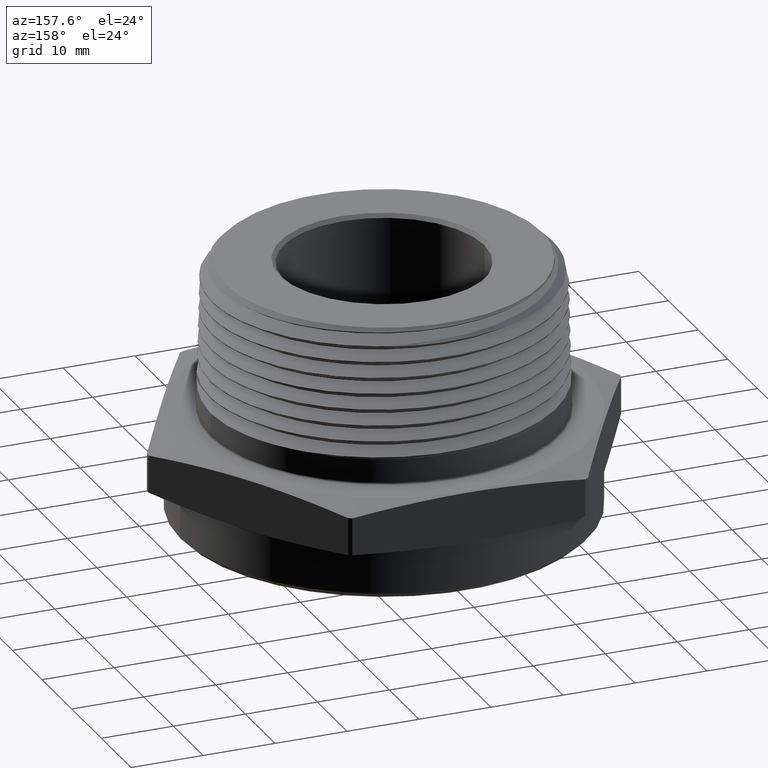
[diagram: clean part render]
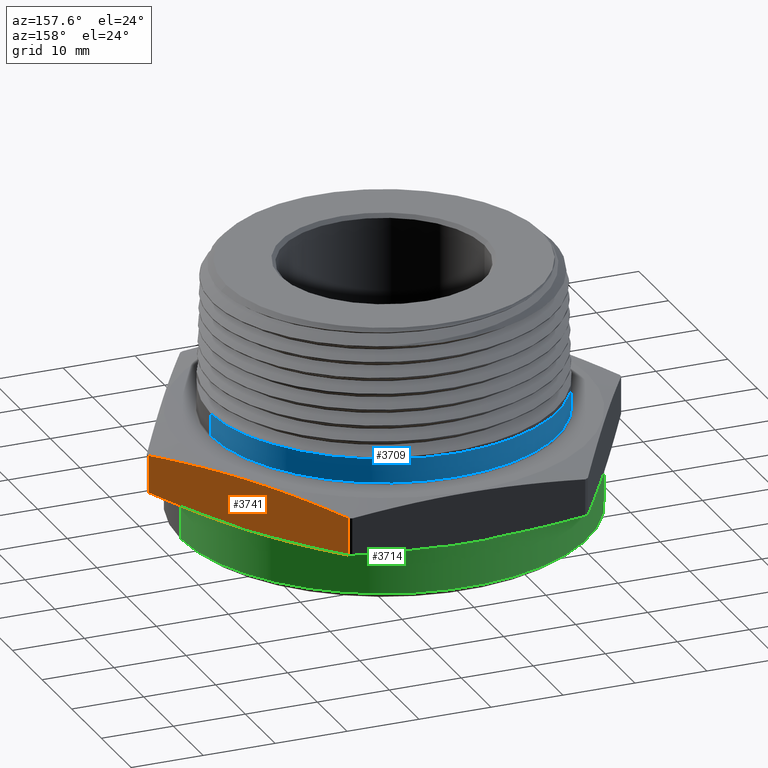
[diagram: same view with three faces highlighted in distinct colors, each labeled with its STEP entity id]
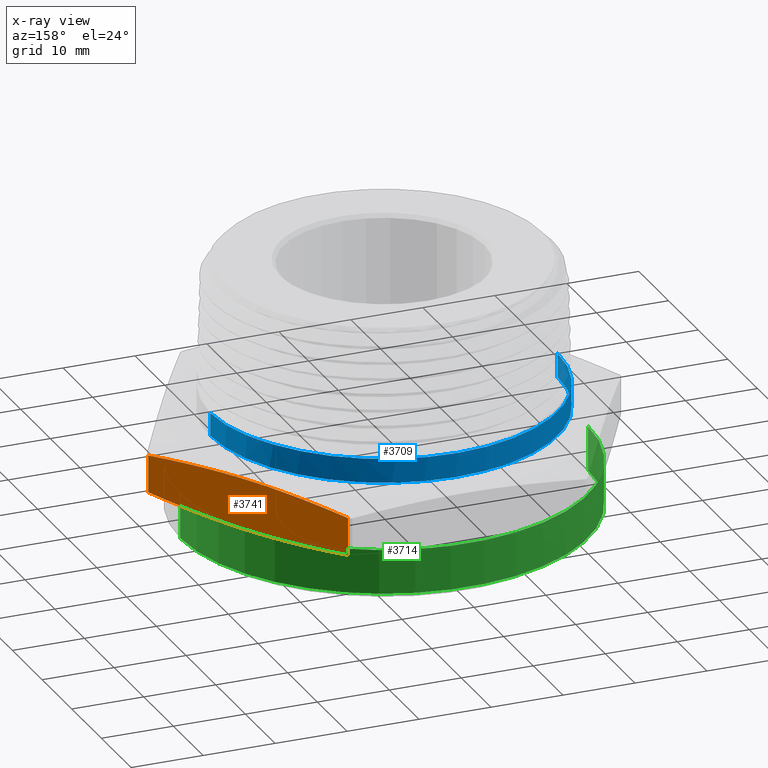
[diagram: x-ray of the same camera — body ghosted, the three highlighted faces saturated]
A machine part, auxiliary view with three faces highlighted in distinct colors.
The next image is the same camera in x-ray (body ghosted, the three faces saturated) — at least one of them is partly hidden behind the body in this view.
Their STEP definitions:

[orange] entity #3741 — the highlighted planar face has unit normal (-0.866, -0.5, 0).
#94 = CARTESIAN_POINT ( 'NONE',  ( 1.292995751187356900, 0.01046566497281173000, 0.2421568324111264000 ) ) ;
#1514 = CARTESIAN_POINT ( 'NONE',  ( 0.6555614073276295800, 1.114534335027189000, 0.03784316758887303800 ) ) ;
#1516 = CARTESIAN_POINT ( 'NONE',  ( 0.6555614073276295800, 1.114534335027189000, 0.2421568324111265100 ) ) ;
#1884 = PLANE ( 'NONE',  #4661 ) ;
#1885 = CARTESIAN_POINT ( 'NONE',  ( 1.299038105676657600, 8.878505979408856000E-016, 0.2800000000000000300 ) ) ;
#1890 = DIRECTION ( 'NONE',  ( -0.8660254037844384900, -0.5000000000000004400, 0.0000000000000000000 ) ) ;
#1891 = DIRECTION ( 'NONE',  ( 0.5000000000000003300, -0.8660254037844383700, 0.0000000000000000000 ) ) ;
#1928 = CARTESIAN_POINT ( 'NONE',  ( 0.6555614073276295800, 1.114534335027189000, 0.2421568324111265100 ) ) ;
#1935 = CARTESIAN_POINT ( 'NONE',  ( 0.7086809359826067300, 1.022528612522657400, 0.2532890800781960600 ) ) ;
#1941 = CARTESIAN_POINT ( 'NONE',  ( 0.7618004646375842200, 0.9305228900181260500, 0.2623080740063898900 ) ) ;
#1942 = CARTESIAN_POINT ( 'NONE',  ( 0.8680395219475384200, 0.7465114450090630800, 0.2746186185401573400 ) ) ;
#1943 = CARTESIAN_POINT ( 'NONE',  ( 0.9742785792574930600, 0.5625000000000003300, 0.2811302502264418400 ) ) ;
#1944 = CARTESIAN_POINT ( 'NONE',  ( 1.080517636567448000, 0.3784885549909375900, 0.2746186185401574000 ) ) ;
#1945 = CARTESIAN_POINT ( 'NONE',  ( 1.186756693877402300, 0.1944771099818747900, 0.2623080740063898400 ) ) ;
#1946 = CARTESIAN_POINT ( 'NONE',  ( 1.239876222532379400, 0.1024713874773433100, 0.2532890800781961200 ) ) ;
#1947 = CARTESIAN_POINT ( 'NONE',  ( 1.292995751187356900, 0.01046566497281173000, 0.2421568324111264000 ) ) ;
#2024 = CARTESIAN_POINT ( 'NONE',  ( 1.292995751187356900, 0.01046566497281173000, 0.03784316758887328000 ) ) ;
#2025 = CARTESIAN_POINT ( 'NONE',  ( 1.239876222532379400, 0.1024713874773432000, 0.02671091992180333500 ) ) ;
#2029 = CARTESIAN_POINT ( 'NONE',  ( 1.186756693877401900, 0.1944771099818745400, 0.01769192599360961200 ) ) ;
#2030 = CARTESIAN_POINT ( 'NONE',  ( 1.080517636567447400, 0.3784885549909373100, 0.005381381459842026600 ) ) ;
#2031 = CARTESIAN_POINT ( 'NONE',  ( 0.9742785792574930600, 0.5625000000000003300, -0.001130250226442484100 ) ) ;
#2032 = CARTESIAN_POINT ( 'NONE',  ( 0.8680395219475384200, 0.7465114450090629700, 0.005381381459842069100 ) ) ;
#2033 = CARTESIAN_POINT ( 'NONE',  ( 0.7618004646375840000, 0.9305228900181260500, 0.01769192599360968500 ) ) ;
#2034 = CARTESIAN_POINT ( 'NONE',  ( 0.7086809359826070600, 1.022528612522657800, 0.02671091992180342100 ) ) ;
#2035 = CARTESIAN_POINT ( 'NONE',  ( 0.6555614073276295800, 1.114534335027189000, 0.03784316758887303800 ) ) ;
#2785 = VERTEX_POINT ( 'NONE', #94 ) ;
#2818 = VERTEX_POINT ( 'NONE', #6125 ) ;
#2844 = VERTEX_POINT ( 'NONE', #1514 ) ;
#2846 = VERTEX_POINT ( 'NONE', #1516 ) ;
#2928 = ORIENTED_EDGE ( 'NONE', *, *, #5303, .T. ) ;
#2929 = ORIENTED_EDGE ( 'NONE', *, *, #5395, .T. ) ;
#2930 = ORIENTED_EDGE ( 'NONE', *, *, #4608, .T. ) ;
#2931 = ORIENTED_EDGE ( 'NONE', *, *, #5390, .T. ) ;
#3071 = EDGE_LOOP ( 'NONE', ( #2928, #2929, #2930, #2931 ) ) ;
#3233 = FACE_OUTER_BOUND ( 'NONE', #3071, .T. ) ;
#3348 = LINE ( 'NONE', #7470, #3351 ) ;
#3351 = VECTOR ( 'NONE', #7471, 39.37007874015748100 ) ;
#3741 = ADVANCED_FACE ( 'NONE', ( #3233 ), #1884, .F. ) ;
#4608 = EDGE_CURVE ( 'NONE', #2846, #2785, #6100, .T. ) ;
#4661 = AXIS2_PLACEMENT_3D ( 'NONE', #1885, #1890, #1891 ) ;
#5303 = EDGE_CURVE ( 'NONE', #2818, #2844, #6104, .T. ) ;
#5390 = EDGE_CURVE ( 'NONE', #2785, #2818, #3348, .T. ) ;
#5395 = EDGE_CURVE ( 'NONE', #2844, #2846, #7572, .T. ) ;
#6100 = B_SPLINE_CURVE_WITH_KNOTS ( 'NONE', 3,
 ( #1928, #1935, #1941, #1942, #1943, #1944, #1945, #1946, #1947 ),
 .UNSPECIFIED., .F., .F.,
 ( 4, 2, 1, 2, 4 ),
 ( 1.908587031458644900E-006, 0.008097324754049988600, 0.01619274092106852100, 0.02428815708808704900, 0.03238357325510558100 ),
 .UNSPECIFIED. ) ;
#6104 = B_SPLINE_CURVE_WITH_KNOTS ( 'NONE', 3,
 ( #2024, #2025, #2029, #2030, #2031, #2032, #2033, #2034, #2035 ),
 .UNSPECIFIED., .F., .F.,
 ( 4, 2, 1, 2, 4 ),
 ( 1.908587031637594600E-006, 0.008097324754050165600, 0.01619274092106869400, 0.02428815708808722300, 0.03238357325510576200 ),
 .UNSPECIFIED. ) ;
#6125 = CARTESIAN_POINT ( 'NONE',  ( 1.292995751187356900, 0.01046566497281173000, 0.03784316758887328000 ) ) ;
#7470 = CARTESIAN_POINT ( 'NONE',  ( 1.292995751187356900, 0.01046566497281173000, -3.999857633734060900E-017 ) ) ;
#7471 = DIRECTION ( 'NONE',  ( -1.254986547952384500E-016, -0.0000000000000000000, -1.000000000000000000 ) ) ;
#7482 = CARTESIAN_POINT ( 'NONE',  ( 0.6555614073276295800, 1.114534335027189000, 3.999857633734060900E-017 ) ) ;
#7483 = DIRECTION ( 'NONE',  ( 1.254986547952384500E-016, 0.0000000000000000000, 1.000000000000000000 ) ) ;
#7572 = LINE ( 'NONE', #7482, #7573 ) ;
#7573 = VECTOR ( 'NONE', #7483, 39.37007874015748100 ) ;

[blue] entity #3709 — the highlighted cylindrical surface (partial cylindrical patch) has radius 24.13 mm, axis along (-0, -0, -1).
#50 = ORIENTED_EDGE ( 'NONE', *, *, #5314, .F. ) ;
#52 = ORIENTED_EDGE ( 'NONE', *, *, #5312, .T. ) ;
#54 = ORIENTED_EDGE ( 'NONE', *, *, #5311, .F. ) ;
#55 = ORIENTED_EDGE ( 'NONE', *, *, #5315, .F. ) ;
#56 = ORIENTED_EDGE ( 'NONE', *, *, #5313, .T. ) ;
#1533 = CARTESIAN_POINT ( 'NONE',  ( -0.9499999999999999600, 0.0000000000000000000, 0.4222118300598746700 ) ) ;
#1548 = CARTESIAN_POINT ( 'NONE',  ( 0.9499999999999999600, 1.163414459189985400E-016, 0.2900000000000000400 ) ) ;
#1790 = DIRECTION ( 'NONE',  ( -1.000000000000000000, 0.0000000000000000000, 0.0000000000000000000 ) ) ;
#1791 = CARTESIAN_POINT ( 'NONE',  ( 0.0000000000000000000, 0.0000000000000000000, 1.110000000000000100 ) ) ;
#1792 = DIRECTION ( 'NONE',  ( -0.0000000000000000000, -0.0000000000000000000, -1.000000000000000000 ) ) ;
#2051 = CARTESIAN_POINT ( 'NONE',  ( 0.9499999999999995100, 0.04376044649130524800, 0.4153536803664295000 ) ) ;
#2052 = DIRECTION ( 'NONE',  ( -0.0000000000000000000, -0.0000000000000000000, -1.000000000000000000 ) ) ;
#2056 = CARTESIAN_POINT ( 'NONE',  ( 0.9499999999999999600, 1.817982100010567200E-015, 0.4147256000610702900 ) ) ;
#2057 = CARTESIAN_POINT ( 'NONE',  ( 0.9499999999999999600, 1.163414459189985400E-016, 1.110000000000000100 ) ) ;
#2058 = CARTESIAN_POINT ( 'NONE',  ( 0.9469906977882162100, 0.08726416962818121800, 0.4159752671624800100 ) ) ;
#2059 = CARTESIAN_POINT ( 'NONE',  ( 0.9379930416244273200, 0.1521369715543598700, 0.4169172804552018800 ) ) ;
#2060 = CARTESIAN_POINT ( 'NONE',  ( 0.9342316562771502100, 0.1737374126749093000, 0.4172328627869398800 ) ) ;
#2061 = CARTESIAN_POINT ( 'NONE',  ( 0.9252972745387201300, 0.2163294475667519600, 0.4178567693195672800 ) ) ;
#2062 = CARTESIAN_POINT ( 'NONE',  ( 0.9201196890647613800, 0.2373750278949111900, 0.4181665073908486500 ) ) ;
#2063 = CARTESIAN_POINT ( 'NONE',  ( 0.9024983694017203500, 0.2997753784389347600, 0.4190960269642967100 ) ) ;
#2064 = CARTESIAN_POINT ( 'NONE',  ( 0.8879755952853726200, 0.3403970977147762200, 0.4197173064405163600 ) ) ;
#2065 = CARTESIAN_POINT ( 'NONE',  ( 0.8620210226933806600, 0.3998593089118000500, 0.4206468554580040700 ) ) ;
#2066 = CARTESIAN_POINT ( 'NONE',  ( 0.8526720590470232600, 0.4194341386086329300, 0.4209569746215595700 ) ) ;
#2067 = CARTESIAN_POINT ( 'NONE',  ( 0.8325481777068743900, 0.4580809630478203700, 0.4215819216731226400 ) ) ;
#2068 = CARTESIAN_POINT ( 'NONE',  ( 0.8217607232639058100, 0.4771666976964960000, 0.4218970241964527500 ) ) ;
#2069 = CARTESIAN_POINT ( 'NONE',  ( 0.8103408575767079300, 0.4958303082122407200, 0.4222118300598746200 ) ) ;
#2070 = DIRECTION ( 'NONE',  ( -0.0000000000000000000, -0.0000000000000000000, -1.000000000000000000 ) ) ;
#2071 = CARTESIAN_POINT ( 'NONE',  ( -0.9499999999999999600, 0.0000000000000000000, 1.110000000000000100 ) ) ;
#2073 = CARTESIAN_POINT ( 'NONE',  ( 0.0000000000000000000, 0.0000000000000000000, 0.2900000000000000400 ) ) ;
#2074 = DIRECTION ( 'NONE',  ( -0.0000000000000000000, 0.0000000000000000000, 1.000000000000000000 ) ) ;
#2075 = DIRECTION ( 'NONE',  ( 1.000000000000000000, 0.0000000000000000000, 0.0000000000000000000 ) ) ;
#2079 = CARTESIAN_POINT ( 'NONE',  ( 0.0000000000000000000, 0.0000000000000000000, 0.4222118300598746700 ) ) ;
#2080 = DIRECTION ( 'NONE',  ( 0.0000000000000000000, 0.0000000000000000000, 1.000000000000000000 ) ) ;
#2081 = DIRECTION ( 'NONE',  ( -1.000000000000000000, 0.0000000000000000000, 0.0000000000000000000 ) ) ;
#2815 = VERTEX_POINT ( 'NONE', #6122 ) ;
#2831 = VERTEX_POINT ( 'NONE', #6138 ) ;
#2838 = VERTEX_POINT ( 'NONE', #6145 ) ;
#2863 = VERTEX_POINT ( 'NONE', #1533 ) ;
#2878 = VERTEX_POINT ( 'NONE', #1548 ) ;
#3068 = EDGE_LOOP ( 'NONE', ( #54, #52, #56, #50, #55 ) ) ;
#3167 = CYLINDRICAL_SURFACE ( 'NONE', #4633, 0.9499999999999999600 ) ;
#3175 = FACE_OUTER_BOUND ( 'NONE', #3068, .T. ) ;
#3286 = LINE ( 'NONE', #2057, #3289 ) ;
#3288 = CIRCLE ( 'NONE', #4691, 0.9499999999999999600 ) ;
#3289 = VECTOR ( 'NONE', #2070, 39.37007874015748100 ) ;
#3290 = LINE ( 'NONE', #2071, #3292 ) ;
#3291 = CIRCLE ( 'NONE', #4692, 0.9499999999999999600 ) ;
#3292 = VECTOR ( 'NONE', #2052, 39.37007874015748100 ) ;
#3709 = ADVANCED_FACE ( 'NONE', ( #3175 ), #3167, .T. ) ;
#4633 = AXIS2_PLACEMENT_3D ( 'NONE', #1791, #1792, #1790 ) ;
#4691 = AXIS2_PLACEMENT_3D ( 'NONE', #2073, #2074, #2075 ) ;
#4692 = AXIS2_PLACEMENT_3D ( 'NONE', #2079, #2080, #2081 ) ;
#5311 = EDGE_CURVE ( 'NONE', #2831, #2815, #6093, .T. ) ;
#5312 = EDGE_CURVE ( 'NONE', #2831, #2878, #3286, .T. ) ;
#5313 = EDGE_CURVE ( 'NONE', #2878, #2838, #3288, .T. ) ;
#5314 = EDGE_CURVE ( 'NONE', #2863, #2838, #3290, .T. ) ;
#5315 = EDGE_CURVE ( 'NONE', #2815, #2863, #3291, .T. ) ;
#6093 = B_SPLINE_CURVE_WITH_KNOTS ( 'NONE', 3,
 ( #2056, #2051, #2058, #2059, #2060, #2061, #2062, #2063, #2064, #2065, #2066, #2067, #2068, #2069 ),
 .UNSPECIFIED., .F., .F.,
 ( 4, 2, 2, 2, 2, 2, 4 ),
 ( 0.0000000000000000000, 0.003322813731981368700, 0.004984220597972053100, 0.006645627463962737500, 0.009968441195944106200, 0.01162984806193479600, 0.01329125492792548400 ),
 .UNSPECIFIED. ) ;
#6122 = CARTESIAN_POINT ( 'NONE',  ( 0.8103408575767079300, 0.4958303082122407200, 0.4222118300598746200 ) ) ;
#6138 = CARTESIAN_POINT ( 'NONE',  ( 0.9499999999999999600, 1.817982100010567200E-015, 0.4147256000610702900 ) ) ;
#6145 = CARTESIAN_POINT ( 'NONE',  ( -0.9499999999999999600, 0.0000000000000000000, 0.2900000000000000400 ) ) ;

[green] entity #3714 — the highlighted cylindrical surface (partial cylindrical patch) has radius 28.321 mm, axis along (0, 0, 1).
#90 = CARTESIAN_POINT ( 'NONE',  ( 0.0000000000000000000, 0.0000000000000000000, -0.2500000000000002200 ) ) ;
#91 = DIRECTION ( 'NONE',  ( 0.0000000000000000000, 0.0000000000000000000, 1.000000000000000000 ) ) ;
#92 = DIRECTION ( 'NONE',  ( -1.000000000000000000, 0.0000000000000000000, 0.0000000000000000000 ) ) ;
#100 = CARTESIAN_POINT ( 'NONE',  ( 1.115000000000000200, 0.0000000000000000000, -0.2500000000000002200 ) ) ;
#294 = EDGE_CURVE ( 'NONE', #2787, #2869, #3151, .T. ) ;
#1537 = CARTESIAN_POINT ( 'NONE',  ( 1.115000000000000200, 0.0000000000000000000, -0.008097840331950474300 ) ) ;
#1539 = CARTESIAN_POINT ( 'NONE',  ( -1.115000000000000200, 1.365481181049298900E-016, -0.2500000000000002200 ) ) ;
#1805 = DIRECTION ( 'NONE',  ( 1.000000000000000000, 0.0000000000000000000, 0.0000000000000000000 ) ) ;
#1806 = CARTESIAN_POINT ( 'NONE',  ( 0.0000000000000000000, 0.0000000000000000000, -0.2800000000000000300 ) ) ;
#1807 = DIRECTION ( 'NONE',  ( -0.0000000000000000000, -0.0000000000000000000, 1.000000000000000000 ) ) ;
#1978 = CARTESIAN_POINT ( 'NONE',  ( 1.115000000000000200, 0.0000000000000000000, -0.2800000000000000300 ) ) ;
#1982 = DIRECTION ( 'NONE',  ( -0.0000000000000000000, -0.0000000000000000000, 1.000000000000000000 ) ) ;
#1986 = DIRECTION ( 'NONE',  ( -0.0000000000000000000, -0.0000000000000000000, 1.000000000000000000 ) ) ;
#1987 = CARTESIAN_POINT ( 'NONE',  ( -1.115000000000000200, 1.365481181049298900E-016, -0.2800000000000000300 ) ) ;
#1992 = CARTESIAN_POINT ( 'NONE',  ( 0.0000000000000000000, 0.0000000000000000000, -0.008097840331950403200 ) ) ;
#1993 = DIRECTION ( 'NONE',  ( -6.274932739761922300E-017, -0.0000000000000000000, -1.000000000000000000 ) ) ;
#1994 = DIRECTION ( 'NONE',  ( -1.000000000000000000, 0.0000000000000000000, 6.316632832884014900E-017 ) ) ;
#2787 = VERTEX_POINT ( 'NONE', #100 ) ;
#2836 = VERTEX_POINT ( 'NONE', #6143 ) ;
#2867 = VERTEX_POINT ( 'NONE', #1537 ) ;
#2869 = VERTEX_POINT ( 'NONE', #1539 ) ;
#2942 = ORIENTED_EDGE ( 'NONE', *, *, #294, .T. ) ;
#2943 = ORIENTED_EDGE ( 'NONE', *, *, #5293, .T. ) ;
#2944 = ORIENTED_EDGE ( 'NONE', *, *, #5294, .T. ) ;
#2945 = ORIENTED_EDGE ( 'NONE', *, *, #5295, .F. ) ;
#3062 = EDGE_LOOP ( 'NONE', ( #2942, #2943, #2944, #2945 ) ) ;
#3151 = CIRCLE ( 'NONE', #4617, 1.115000000000000200 ) ;
#3188 = CYLINDRICAL_SURFACE ( 'NONE', #4638, 1.115000000000000200 ) ;
#3189 = FACE_OUTER_BOUND ( 'NONE', #3062, .T. ) ;
#3264 = LINE ( 'NONE', #1987, #3268 ) ;
#3267 = CIRCLE ( 'NONE', #4682, 1.115000000000000200 ) ;
#3268 = VECTOR ( 'NONE', #1982, 39.37007874015748100 ) ;
#3269 = LINE ( 'NONE', #1978, #3271 ) ;
#3271 = VECTOR ( 'NONE', #1986, 39.37007874015748100 ) ;
#3714 = ADVANCED_FACE ( 'NONE', ( #3189 ), #3188, .T. ) ;
#4617 = AXIS2_PLACEMENT_3D ( 'NONE', #90, #91, #92 ) ;
#4638 = AXIS2_PLACEMENT_3D ( 'NONE', #1806, #1807, #1805 ) ;
#4682 = AXIS2_PLACEMENT_3D ( 'NONE', #1992, #1993, #1994 ) ;
#5293 = EDGE_CURVE ( 'NONE', #2869, #2836, #3264, .T. ) ;
#5294 = EDGE_CURVE ( 'NONE', #2836, #2867, #3267, .T. ) ;
#5295 = EDGE_CURVE ( 'NONE', #2787, #2867, #3269, .T. ) ;
#6143 = CARTESIAN_POINT ( 'NONE',  ( -1.115000000000000200, 1.365481181049298900E-016, -0.008097840331950332100 ) ) ;